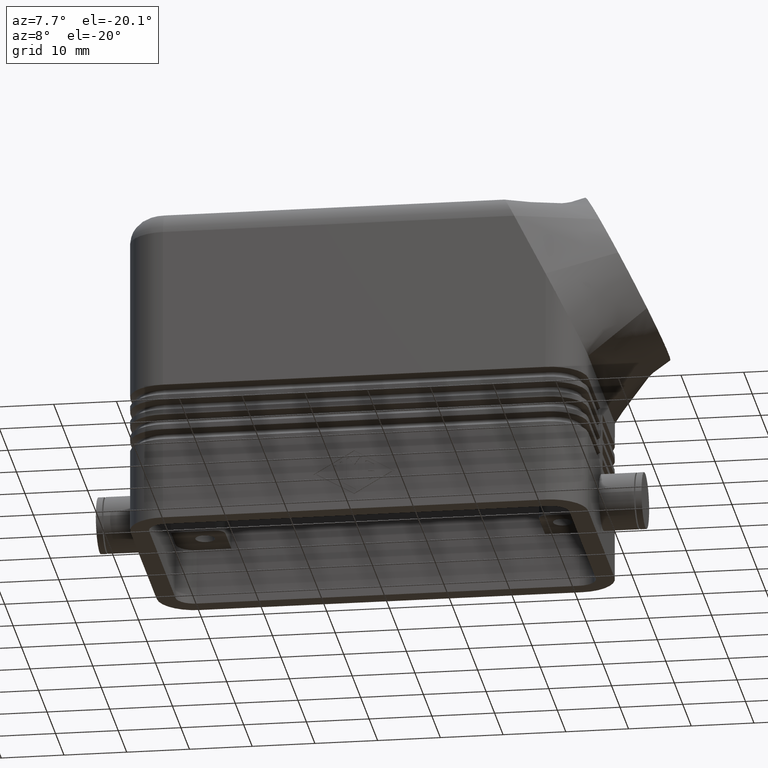
[diagram: clean part render]
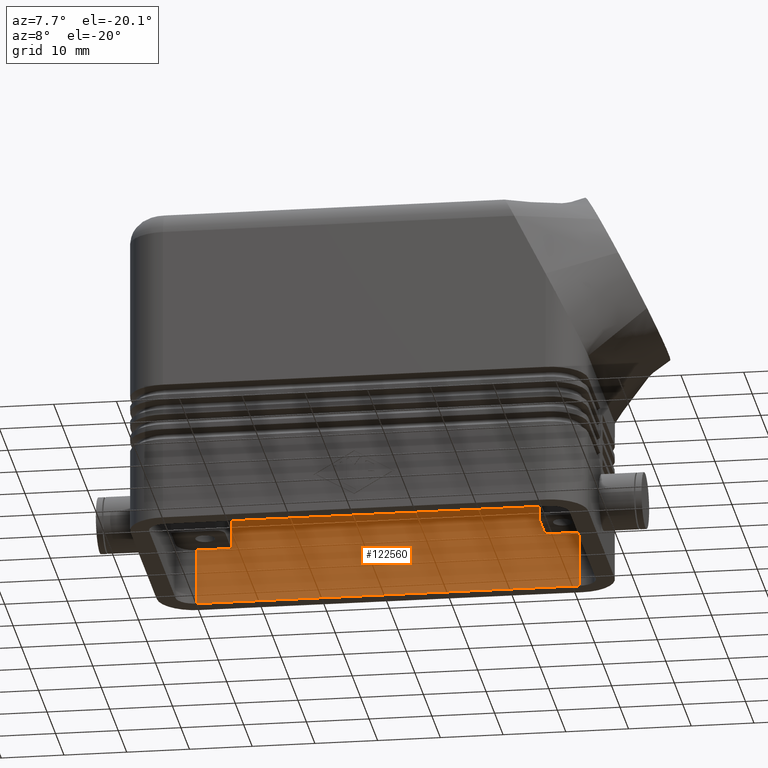
[diagram: same view with one face highlighted and labeled with its STEP entity id]
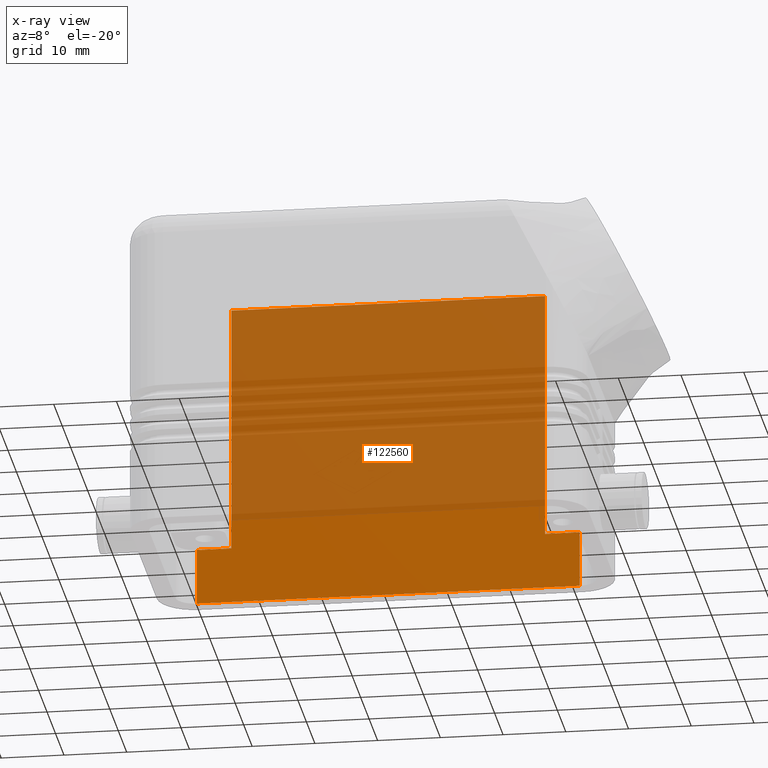
[diagram: x-ray of the same camera — body ghosted, the highlighted face saturated]
A machine part, auxiliary view. The second image highlights one B-rep face of the part: STEP entity #122560.
The next image is the same camera in x-ray: the body ghosted, the highlighted face saturated — about 69% of this face is hidden behind the body in this view.
In plain terms, the highlighted planar face has unit normal (0, -1, 0).
Its self-contained STEP definition (entity closure, byte-faithful):
#3140=CARTESIAN_POINT('',(-30.5,18.5,1.31666849868032E-14));
#3150=DIRECTION('',(0.,0.,1.));
#3160=VECTOR('',#3150,1.);
#3170=LINE('',#3140,#3160);
#3180=CARTESIAN_POINT('',(-30.5,18.5,1.31666849868032E-14));
#3190=VERTEX_POINT('',#3180);
#3200=CARTESIAN_POINT('',(-30.5,18.5,9.));
#3210=VERTEX_POINT('',#3200);
#3220=EDGE_CURVE('',#3190,#3210,#3170,.T.);
#3630=CARTESIAN_POINT('',(30.5,18.5,9.));
#3640=DIRECTION('',(0.,0.,-1.));
#3650=VECTOR('',#3640,1.);
#3660=LINE('',#3630,#3650);
#3670=CARTESIAN_POINT('',(30.5,18.5,9.));
#3680=VERTEX_POINT('',#3670);
#3690=CARTESIAN_POINT('',(30.5,18.5,2.03403767138385E-15));
#3700=VERTEX_POINT('',#3690);
#3710=EDGE_CURVE('',#3680,#3700,#3660,.T.);
#56980=CARTESIAN_POINT('',(25.,18.5,49.));
#56990=VERTEX_POINT('',#56980);
#57020=CARTESIAN_POINT('',(0.,18.5,49.));
#57030=DIRECTION('',(-1.,-0.,0.));
#57040=VECTOR('',#57030,1.);
#57050=LINE('',#57020,#57040);
#57060=CARTESIAN_POINT('',(-25.,18.5,49.));
#57070=VERTEX_POINT('',#57060);
#57080=EDGE_CURVE('',#56990,#57070,#57050,.T.);
#80200=CARTESIAN_POINT('',(0.,18.5,9.));
#80210=DIRECTION('',(-1.,-0.,0.));
#80220=VECTOR('',#80210,1.);
#80230=LINE('',#80200,#80220);
#80240=CARTESIAN_POINT('',(25.,18.5,9.));
#80250=VERTEX_POINT('',#80240);
#80260=EDGE_CURVE('',#3680,#80250,#80230,.T.);
#87910=CARTESIAN_POINT('',(0.,18.5,1.33226762955019E-14));
#87920=DIRECTION('',(-1.,-0.,-0.));
#87930=VECTOR('',#87920,1.);
#87940=LINE('',#87910,#87930);
#87950=EDGE_CURVE('',#3700,#3190,#87940,.T.);
#122240=CARTESIAN_POINT('',(-36.6,18.5,53.9));
#122250=DIRECTION('',(0.,-1.,0.));
#122260=DIRECTION('',(-1.,-0.,0.));
#122270=AXIS2_PLACEMENT_3D('',#122240,#122250,#122260);
#122280=PLANE('',#122270);
#122290=ORIENTED_EDGE('',*,*,#3220,.F.);
#122300=CARTESIAN_POINT('',(0.,18.5,9.));
#122310=DIRECTION('',(-1.,-0.,0.));
#122320=VECTOR('',#122310,1.);
#122330=LINE('',#122300,#122320);
#122340=CARTESIAN_POINT('',(-25.,18.5,9.));
#122350=VERTEX_POINT('',#122340);
#122360=EDGE_CURVE('',#122350,#3210,#122330,.T.);
#122370=ORIENTED_EDGE('',*,*,#122360,.T.);
#122380=CARTESIAN_POINT('',(-25.,18.5,0.));
#122390=DIRECTION('',(0.,-0.,-1.));
#122400=VECTOR('',#122390,1.);
#122410=LINE('',#122380,#122400);
#122420=EDGE_CURVE('',#57070,#122350,#122410,.T.);
#122430=ORIENTED_EDGE('',*,*,#122420,.T.);
#122440=ORIENTED_EDGE('',*,*,#57080,.T.);
#122450=CARTESIAN_POINT('',(25.,18.5,0.));
#122460=DIRECTION('',(0.,-0.,1.));
#122470=VECTOR('',#122460,1.);
#122480=LINE('',#122450,#122470);
#122490=EDGE_CURVE('',#80250,#56990,#122480,.T.);
#122500=ORIENTED_EDGE('',*,*,#122490,.T.);
#122510=ORIENTED_EDGE('',*,*,#80260,.T.);
#122520=ORIENTED_EDGE('',*,*,#3710,.F.);
#122530=ORIENTED_EDGE('',*,*,#87950,.F.);
#122540=EDGE_LOOP('',(#122530,#122520,#122510,#122500,#122440,#122430,
#122370,#122290));
#122550=FACE_OUTER_BOUND('',#122540,.T.);
#122560=ADVANCED_FACE('',(#122550),#122280,.T.);